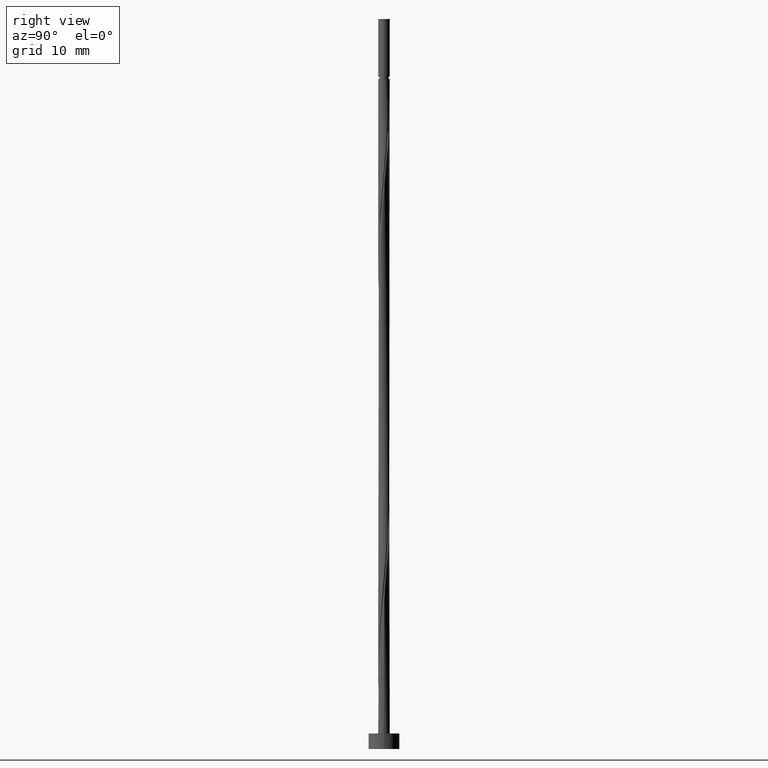
[diagram: clean part render]
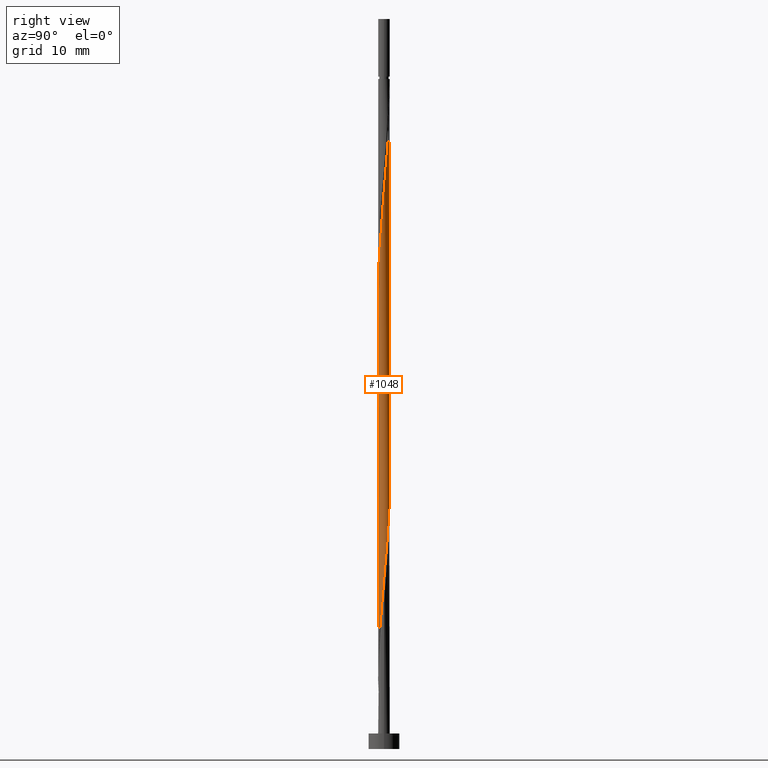
[diagram: same view with one face highlighted and labeled with its STEP entity id]
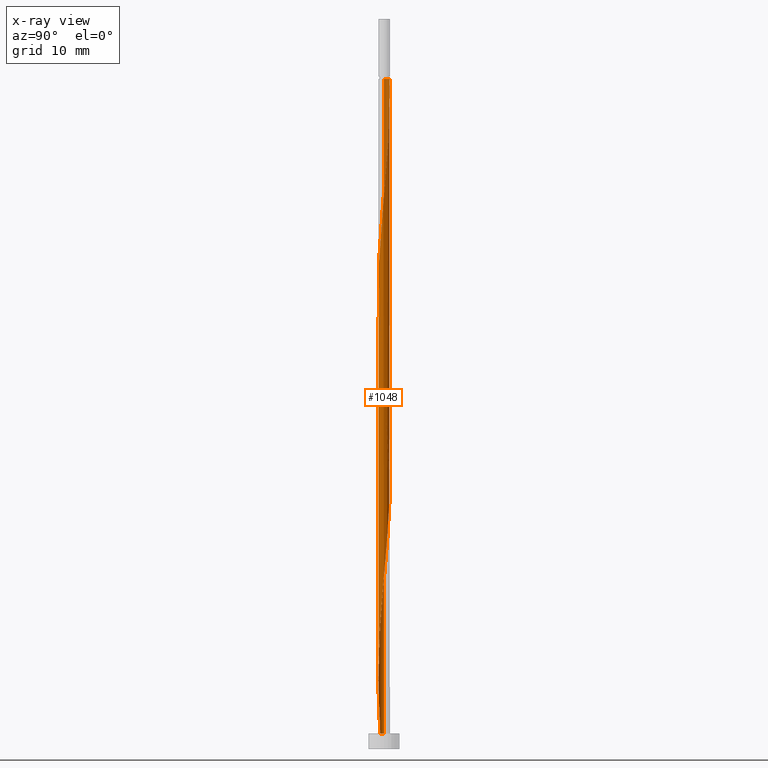
[diagram: x-ray of the same camera — body ghosted, the highlighted face saturated]
A machine part, right view. The second image highlights one B-rep face of the part: STEP entity #1048.
The next image is the same camera in x-ray: the body ghosted, the highlighted face saturated — about 0% of this face is hidden behind the body in this view.
In plain terms, the highlighted cylindrical surface (bore or boss wall) has radius 0.75 mm, axis along (-0, -0, -1).
Its self-contained STEP definition (entity closure, byte-faithful):
#8 =( BOUNDED_CURVE ( )  B_SPLINE_CURVE ( 2, ( #1279, #1074, #1932, #1255, #1717, #899, #260, #234, #575, #1553, #57, #737, #81, #1584, #1565, #762, #1403, #1233, #584, #1909, #1243, #1895, #419, #1099, #1085, #246, #924, #144, #824, #1290, #1608 ),
 .UNSPECIFIED., .F., .T. ) 
 B_SPLINE_CURVE_WITH_KNOTS ( ( 3, 2, 2, 2, 2, 2, 2, 2, 2, 2, 2, 2, 2, 2, 2, 3 ),
 ( 0.4295303401299219170, 0.4375000000000000000, 0.4464285714285714524, 0.4553571428571428492, 0.4642857142857143016, 0.4732142857142856984, 0.4821428571428571508, 0.4910714285714285476, 0.5000000000000000000, 0.5089285714285713969, 0.5178571428571429047, 0.5267857142857143016, 0.5357142857142856984, 0.5446428571428570953, 0.5535714285714286031, 0.5545303401299220836 ),
 .UNSPECIFIED. ) 
 CURVE ( )  GEOMETRIC_REPRESENTATION_ITEM ( )  RATIONAL_B_SPLINE_CURVE ( ( 0.9079949616361788767, 0.9039886423360418144, 0.9090909090909087276, 0.9033747362665836000, 0.9090909090909087276, 0.9033747362665836000, 0.9090909090909087276, 0.9033747362665836000, 0.9090909090909087276, 0.9033747362665836000, 0.9090909090909087276, 0.9033747362665836000, 0.9090909090909087276, 0.9033747362665836000, 0.9090909090909087276, 0.9033747362665836000, 0.9090909090909087276, 0.9033747362665836000, 0.9090909090909087276, 0.9033747362665836000, 0.9090909090909087276, 0.9033747362665836000, 0.9090909090909087276, 0.9033747362665836000, 0.9090909090909087276, 0.9033747362665836000, 0.9090909090909087276, 0.9033747362665836000, 0.9090909090909087276, 0.9084770030214505132, 0.9079949616361788767 ) ) 
 REPRESENTATION_ITEM ( '' )  );
#36 = CARTESIAN_POINT ( 'NONE',  ( -0.7500000000000001110, 0.000000000000000000, 94.00000000000000000 ) ) ;
#56 = VERTEX_POINT ( 'NONE', #1492 ) ;
#57 = CARTESIAN_POINT ( 'NONE',  ( -0.3415781289176498814, 0.6677008176160332820, 39.39293618694316734 ) ) ;
#81 = CARTESIAN_POINT ( 'NONE',  ( -0.1844366425333437420, 0.7269684483463018099, 37.51793618694316734 ) ) ;
#103 = CARTESIAN_POINT ( 'NONE',  ( -0.7500000000000001110, 0.000000000000000000, 2.000000000000000000 ) ) ;
#114 = CARTESIAN_POINT ( 'NONE',  ( -0.7350000000000012079, -0.1492481155659928227, 46.89293618694318155 ) ) ;
#123 = CARTESIAN_POINT ( 'NONE',  ( -0.4815914616119726377, -0.5749518798146898702, 52.51793618694316734 ) ) ;
#135 = CARTESIAN_POINT ( 'NONE',  ( 0.2320627263925745531, -0.7181837760446291297, 60.95543618694316734 ) ) ;
#144 = CARTESIAN_POINT ( 'NONE',  ( 0.7477494670858394477, 0.1025269702435437497, 23.45543618694317445 ) ) ;
#147 = CARTESIAN_POINT ( 'NONE',  ( -0.06643350473941125878, -0.7518162239553732862, 8.455436186943179777 ) ) ;
#153 = CARTESIAN_POINT ( 'NONE',  ( -0.7500000000000013323, -5.046777171966181625E-16, 45.21841910903714989 ) ) ;
#157 = CARTESIAN_POINT ( 'NONE',  ( 0.5463729802117891499, -0.5206895540040777925, 15.95543618694316912 ) ) ;
#177 = LINE ( 'NONE', #1061, #1468 ) ;
#186 = EDGE_CURVE ( 'NONE', #1697, #689, #2086, .T. ) ;
#187 = DIRECTION ( 'NONE',  ( -0.000000000000000000, -0.000000000000000000, -1.000000000000000000 ) ) ;
#201 = DIRECTION ( 'NONE',  ( -0.000000000000000000, -0.000000000000000000, -1.000000000000000000 ) ) ;
#234 = CARTESIAN_POINT ( 'NONE',  ( -0.5463729802117892609, 0.5206895540040777925, 42.20543618694317445 ) ) ;
#246 = CARTESIAN_POINT ( 'NONE',  ( 0.7061874296067640611, 0.2663463148231435818, 25.33043618694317090 ) ) ;
#260 = CARTESIAN_POINT ( 'NONE',  ( -0.5974557874702568494, 0.4533724539694678479, 43.14293618694316734 ) ) ;
#266 = ORIENTED_EDGE ( 'NONE', *, *, #810, .T. ) ;
#285 = CARTESIAN_POINT ( 'NONE',  ( 0.6833611853866768948, 0.3090590401637162699, 75.01793618694316024 ) ) ;
#295 = CARTESIAN_POINT ( 'NONE',  ( 0.7477494670858391146, -0.1025269702435439440, 70.33043618694317445 ) ) ;
#307 = CARTESIAN_POINT ( 'NONE',  ( -0.1025269702435439162, -0.7477494670858391146, 57.20543618694316734 ) ) ;
#317 = EDGE_CURVE ( 'NONE', #742, #689, #1224, .T. ) ;
#319 = CARTESIAN_POINT ( 'NONE',  ( 0.7269684483463013658, -0.1844366425333437975, 69.39293618694314603 ) ) ;
#331 = CARTESIAN_POINT ( 'NONE',  ( -0.1492481155660139724, 0.7350000000002122613, 86.26793618694317445 ) ) ;
#346 = CARTESIAN_POINT ( 'NONE',  ( 0.2663463148231436373, -0.7061874296067640611, 12.20543618694316912 ) ) ;
#372 = ORIENTED_EDGE ( 'NONE', *, *, #597, .F. ) ;
#387 = VECTOR ( 'NONE', #187, 1000.000000000000000 ) ;
#419 = CARTESIAN_POINT ( 'NONE',  ( 0.5749518798146904253, 0.4815914616119725822, 28.14293618694317800 ) ) ;
#465 = CARTESIAN_POINT ( 'NONE',  ( -0.7500000000000007772, -0.07537783614444165670, 46.05669018800074355 ) ) ;
#474 = CARTESIAN_POINT ( 'NONE',  ( 0.3090590401637162699, -0.6833611853866767838, 61.89293618694318155 ) ) ;
#478 = CARTESIAN_POINT ( 'NONE',  ( 0.01804673275206628361, -0.7497828455206064779, 9.392936186943172672 ) ) ;
#483 = CARTESIAN_POINT ( 'NONE',  ( 0.4533724539694676259, -0.5974557874702567384, 63.76793618694320287 ) ) ;
#486 = CARTESIAN_POINT ( 'NONE',  ( 0.7500000000000013323, 3.059783571912945138E-16, 22.31745326484922742 ) ) ;
#493 = CARTESIAN_POINT ( 'NONE',  ( 0.1844366425333438531, 0.7269684483463013658, 82.51793618694317445 ) ) ;
#512 = DIRECTION ( 'NONE',  ( 1.000000000000000000, 0.000000000000000000, 0.000000000000000000 ) ) ;
#513 = LINE ( 'NONE', #1703, #387 ) ;
#563 = ORIENTED_EDGE ( 'NONE', *, *, #953, .F. ) ;
#566 = CIRCLE ( 'NONE', #1738, 0.7500000000000015543 ) ;
#575 = CARTESIAN_POINT ( 'NONE',  ( -0.4815914616119726932, 0.5749518798146903142, 41.26793618694317445 ) ) ;
#584 = CARTESIAN_POINT ( 'NONE',  ( 0.3090590401637165474, 0.6833611853866768948, 31.89293618694317445 ) ) ;
#597 = EDGE_CURVE ( 'NONE', #1419, #1098, #2039, .T. ) ;
#625 = ORIENTED_EDGE ( 'NONE', *, *, #186, .T. ) ;
#633 = CARTESIAN_POINT ( 'NONE',  ( -0.06643350473941206369, 0.7518162239553730641, 85.33043618694318866 ) ) ;
#636 = CARTESIAN_POINT ( 'NONE',  ( -0.1492481155659930447, -0.7350000000000013189, 7.517936186943170895 ) ) ;
#644 = DIRECTION ( 'NONE',  ( -1.000000000000000000, 0.000000000000000000, 0.000000000000000000 ) ) ;
#647 = CARTESIAN_POINT ( 'NONE',  ( 0.4168099430121562921, -0.6292142056253025029, 14.08043618694317090 ) ) ;
#653 = CARTESIAN_POINT ( 'NONE',  ( 0.5974557874702567384, 0.4533724539694676259, 76.89293618694318866 ) ) ;
#657 = CARTESIAN_POINT ( 'NONE',  ( 0.5974557874702567384, -0.4533724539694679034, 16.89293618694318511 ) ) ;
#662 = CARTESIAN_POINT ( 'NONE',  ( 0.7181837760446291297, 0.2320627263925744699, 74.08043618694314603 ) ) ;
#672 = DIRECTION ( 'NONE',  ( 0.000000000000000000, 0.000000000000000000, 1.000000000000000000 ) ) ;
#676 = CARTESIAN_POINT ( 'NONE',  ( 0.3415781289176498814, -0.6677008176160333930, 13.14293618694317622 ) ) ;
#689 = VERTEX_POINT ( 'NONE', #726 ) ;
#710 = EDGE_LOOP ( 'NONE', ( #372, #1648, #563, #1103, #625, #1402, #891, #266, #1442 ) ) ;
#726 = CARTESIAN_POINT ( 'NONE',  ( -0.5687120014816356983, -0.4889444338273560287, 2.000000000000081268 ) ) ;
#730 = VERTEX_POINT ( 'NONE', #2031 ) ;
#737 = CARTESIAN_POINT ( 'NONE',  ( -0.2663463148231436928, 0.7061874296067640611, 38.45543618694318155 ) ) ;
#742 = VERTEX_POINT ( 'NONE', #1222 ) ;
#762 = CARTESIAN_POINT ( 'NONE',  ( 0.06643350473941116163, 0.7518162239553732862, 34.70543618694317445 ) ) ;
#766 = VERTEX_POINT ( 'NONE', #1043 ) ;
#796 = CARTESIAN_POINT ( 'NONE',  ( -0.3415781289176497704, -0.6677008176160329489, 54.39293618694316734 ) ) ;
#800 = CARTESIAN_POINT ( 'NONE',  ( 0.7181837760446293517, -0.2320627263925748585, 19.70543618694318155 ) ) ;
#805 = CYLINDRICAL_SURFACE ( 'NONE', #1662, 0.7500000000000001110 ) ;
#808 = CARTESIAN_POINT ( 'NONE',  ( -0.4533724539694678479, -0.5974557874702567384, 3.767936186943182886 ) ) ;
#810 = EDGE_CURVE ( 'NONE', #766, #742, #177, .T. ) ;
#815 = CARTESIAN_POINT ( 'NONE',  ( 0.7061874296067636170, -0.2663463148231435818, 68.45543618694316024 ) ) ;
#824 = CARTESIAN_POINT ( 'NONE',  ( 0.7497828455206064779, 0.01804673275206625932, 22.51793618694317445 ) ) ;
#833 = EDGE_CURVE ( 'NONE', #1419, #730, #566, .T. ) ;
#834 = CARTESIAN_POINT ( 'NONE',  ( 0.000000000000000000, 0.000000000000000000, 2.000000000000000000 ) ) ;
#835 = CARTESIAN_POINT ( 'NONE',  ( 0.2663463148231436373, 0.7061874296067633949, 81.58043618694314603 ) ) ;
#891 = ORIENTED_EDGE ( 'NONE', *, *, #810, .F. ) ;
#899 = CARTESIAN_POINT ( 'NONE',  ( -0.6485385947287247710, 0.3860553539348582919, 44.08043618694317445 ) ) ;
#924 = CARTESIAN_POINT ( 'NONE',  ( 0.7269684483463018099, 0.1844366425333435755, 24.39293618694317090 ) ) ;
#936 = EDGE_CURVE ( 'NONE', #1098, #742, #8, .T. ) ;
#953 = EDGE_CURVE ( 'NONE', #56, #730, #1256, .T. ) ;
#959 = FACE_OUTER_BOUND ( 'NONE', #710, .T. ) ;
#968 = CARTESIAN_POINT ( 'NONE',  ( 0.7518162239553730641, 0.06643350473941102285, 72.20543618694314603 ) ) ;
#978 = CARTESIAN_POINT ( 'NONE',  ( -0.1844366425333437420, -0.7269684483463013658, 56.26793618694317445 ) ) ;
#981 = CARTESIAN_POINT ( 'NONE',  ( 0.1025269702435437913, -0.7477494670858394477, 10.33043618694318333 ) ) ;
#984 = AXIS2_PLACEMENT_3D ( 'NONE', #834, #672, #512 ) ;
#990 = CARTESIAN_POINT ( 'NONE',  ( -0.7181837760446291297, -0.2320627263925746087, 47.83043618694316024 ) ) ;
#999 = CARTESIAN_POINT ( 'NONE',  ( 0.4815914616119726377, 0.5749518798146897591, 78.76793618694317445 ) ) ;
#1043 = CARTESIAN_POINT ( 'NONE',  ( 0.7500000000000001110, 9.184850993605150903E-17, 86.26793618694317445 ) ) ;
#1048 = ADVANCED_FACE ( 'NONE', ( #959 ), #805, .T. ) ;
#1061 = CARTESIAN_POINT ( 'NONE',  ( 0.7500000000000001110, 9.184850993605150903E-17, 94.00000000000000000 ) ) ;
#1074 = CARTESIAN_POINT ( 'NONE',  ( -0.7500000000000017764, 0.07537783614443960278, 47.72918218588566219 ) ) ;
#1085 = CARTESIAN_POINT ( 'NONE',  ( 0.6677008176160333930, 0.3415781289176498814, 26.26793618694317090 ) ) ;
#1098 = VERTEX_POINT ( 'NONE', #1540 ) ;
#1099 = CARTESIAN_POINT ( 'NONE',  ( 0.6292142056253023918, 0.4168099430121561810, 27.20543618694317445 ) ) ;
#1103 = ORIENTED_EDGE ( 'NONE', *, *, #1105, .T. ) ;
#1105 = EDGE_CURVE ( 'NONE', #56, #1697, #513, .T. ) ;
#1133 = CARTESIAN_POINT ( 'NONE',  ( 0.01804673275206652647, 0.7497828455206061449, 84.39293618694313182 ) ) ;
#1136 = CARTESIAN_POINT ( 'NONE',  ( -0.5687120014816358093, -0.4889444338273560287, 2.000000000000081268 ) ) ;
#1141 = CARTESIAN_POINT ( 'NONE',  ( -0.5974557874702567384, -0.4533724539694677369, 50.64293618694317445 ) ) ;
#1144 = CARTESIAN_POINT ( 'NONE',  ( -0.3090590401637165474, -0.6833611853866771169, 5.642936186943170895 ) ) ;
#1158 = CARTESIAN_POINT ( 'NONE',  ( 0.1025269702435439995, 0.7477494670858391146, 83.45543618694314603 ) ) ;
#1173 = CARTESIAN_POINT ( 'NONE',  ( 0.7500000000000014433, -0.07537783614444079627, 21.47918218588563022 ) ) ;
#1212 = CARTESIAN_POINT ( 'NONE',  ( 0.000000000000000000, 0.000000000000000000, 86.26793618694317445 ) ) ;
#1222 = CARTESIAN_POINT ( 'NONE',  ( 0.7500000000000013323, 3.059783571912945138E-16, 22.31745326484922742 ) ) ;
#1224 =( BOUNDED_CURVE ( )  B_SPLINE_CURVE ( 2, ( #486, #1173, #1495, #800, #1641, #1957, #657, #157, #2142, #647, #676, #346, #2112, #981, #478, #147, #636, #1484, #1144, #2134, #808, #1622, #1136 ),
 .UNSPECIFIED., .F., .T. ) 
 B_SPLINE_CURVE_WITH_KNOTS ( ( 3, 2, 2, 2, 2, 2, 2, 2, 2, 2, 2, 3 ),
 ( 0.5545303401299220836, 0.5625000000000000000, 0.5714285714285713969, 0.5803571428571429047, 0.5892857142857143016, 0.5982142857142856984, 0.6071428571428570953, 0.6160714285714286031, 0.6250000000000000000, 0.6339285714285713969, 0.6428571428571429047, 0.6512731958815829447 ),
 .UNSPECIFIED. ) 
 CURVE ( )  GEOMETRIC_REPRESENTATION_ITEM ( )  RATIONAL_B_SPLINE_CURVE ( ( 0.9079949616361788767, 0.9039886423360419254, 0.9090909090909087276, 0.9033747362665836000, 0.9090909090909087276, 0.9033747362665836000, 0.9090909090909087276, 0.9033747362665836000, 0.9090909090909087276, 0.9033747362665836000, 0.9090909090909087276, 0.9033747362665836000, 0.9090909090909087276, 0.9033747362665836000, 0.9090909090909087276, 0.9033747362665836000, 0.9090909090909087276, 0.9033747362665836000, 0.9090909090909087276, 0.9033747362665836000, 0.9090909090909087276, 0.9037028563692337535, 0.9084723384260761092 ) ) 
 REPRESENTATION_ITEM ( '' )  );
#1233 = CARTESIAN_POINT ( 'NONE',  ( 0.2320627263925748862, 0.7181837760446293517, 32.83043618694317445 ) ) ;
#1243 = CARTESIAN_POINT ( 'NONE',  ( 0.4533724539694679034, 0.5974557874702567384, 30.01793618694317800 ) ) ;
#1255 = CARTESIAN_POINT ( 'NONE',  ( -0.7181837760446294627, 0.2320627263925747752, 45.95543618694317445 ) ) ;
#1256 =( BOUNDED_CURVE ( )  B_SPLINE_CURVE ( 2, ( #153, #465, #114, #990, #1619, #1638, #1141, #2109, #123, #1773, #796, #1481, #978, #307, #1627, #1954, #1801, #135, #474, #1318, #483, #1450, #1973, #2139, #1812, #815, #319, #295, #1472, #968, #1943, #662, #285, #2149, #653, #1310, #999, #1963, #1647, #835, #493, #1158, #1133, #633, #331 ),
 .UNSPECIFIED., .F., .T. ) 
 B_SPLINE_CURVE_WITH_KNOTS ( ( 3, 2, 2, 2, 2, 2, 2, 2, 2, 2, 2, 2, 2, 2, 2, 2, 2, 2, 2, 2, 2, 2, 3 ),
 ( 0.5545303401299221946, 0.5625000000000000000, 0.5714285714285713969, 0.5803571428571427937, 0.5892857142857143016, 0.5982142857142856984, 0.6071428571428572063, 0.6160714285714286031, 0.6250000000000000000, 0.6339285714285713969, 0.6428571428571427937, 0.6517857142857144126, 0.6607142857142858094, 0.6696428571428573173, 0.6785714285714287142, 0.6875000000000001110, 0.6964285714285715079, 0.7053571428571429047, 0.7142857142857144126, 0.7232142857142858094, 0.7321428571428573173, 0.7410714285714287142, 0.7500000000000001110 ),
 .UNSPECIFIED. ) 
 CURVE ( )  GEOMETRIC_REPRESENTATION_ITEM ( )  RATIONAL_B_SPLINE_CURVE ( ( 0.9079949616361765452, 0.9039886423360401491, 0.9090909090909066181, 0.9033747362665818237, 0.9090909090909066181, 0.9033747362665818237, 0.9090909090909066181, 0.9033747362665818237, 0.9090909090909066181, 0.9033747362665818237, 0.9090909090909066181, 0.9033747362665818237, 0.9090909090909066181, 0.9033747362665818237, 0.9090909090909066181, 0.9033747362665818237, 0.9090909090909066181, 0.9033747362665818237, 0.9090909090909066181, 0.9033747362665818237, 0.9090909090909066181, 0.9033747362665818237, 0.9090909090909066181, 0.9033747362665818237, 0.9090909090909066181, 0.9033747362665818237, 0.9090909090909066181, 0.9033747362665818237, 0.9090909090909066181, 0.9033747362665818237, 0.9090909090909066181, 0.9033747362665818237, 0.9090909090909066181, 0.9033747362665818237, 0.9090909090909066181, 0.9033747362665818237, 0.9090909090909066181, 0.9033747362665818237, 0.9090909090909066181, 0.9033747362665818237, 0.9090909090909066181, 0.9033747362665818237, 0.9090909090909066181, 0.9033747362665817127, 0.9090909090909067292 ) ) 
 REPRESENTATION_ITEM ( '' )  );
#1279 = CARTESIAN_POINT ( 'NONE',  ( -0.7500000000000015543, -5.028119955064261352E-16, 48.56745326484923453 ) ) ;
#1290 = CARTESIAN_POINT ( 'NONE',  ( 0.7500000000000013323, 0.009024672874793169403, 22.41781595307431374 ) ) ;
#1310 = CARTESIAN_POINT ( 'NONE',  ( 0.5463729802117890388, 0.5206895540040771264, 77.83043618694316024 ) ) ;
#1318 = CARTESIAN_POINT ( 'NONE',  ( 0.3860553539348579033, -0.6485385947287242159, 62.83043618694316024 ) ) ;
#1364 = DIRECTION ( 'NONE',  ( -0.000000000000000000, -0.000000000000000000, -1.000000000000000000 ) ) ;
#1402 = ORIENTED_EDGE ( 'NONE', *, *, #317, .F. ) ;
#1403 = CARTESIAN_POINT ( 'NONE',  ( 0.1492481155659931003, 0.7350000000000013189, 33.76793618694317445 ) ) ;
#1419 = VERTEX_POINT ( 'NONE', #1501 ) ;
#1442 = ORIENTED_EDGE ( 'NONE', *, *, #936, .F. ) ;
#1450 = CARTESIAN_POINT ( 'NONE',  ( 0.5206895540040771264, -0.5463729802117890388, 64.70543618694317445 ) ) ;
#1461 = CARTESIAN_POINT ( 'NONE',  ( 0.000000000000000000, 0.000000000000000000, 94.00000000000000000 ) ) ;
#1468 = VECTOR ( 'NONE', #1852, 1000.000000000000000 ) ;
#1472 = CARTESIAN_POINT ( 'NONE',  ( 0.7497828455206061449, -0.01804673275206647443, 71.26793618694318866 ) ) ;
#1481 = CARTESIAN_POINT ( 'NONE',  ( -0.2663463148231435818, -0.7061874296067636170, 55.33043618694316734 ) ) ;
#1484 = CARTESIAN_POINT ( 'NONE',  ( -0.2320627263925748029, -0.7181837760446293517, 6.580436186943178889 ) ) ;
#1492 = CARTESIAN_POINT ( 'NONE',  ( -0.7500000000000013323, -5.046777171966181625E-16, 45.21841910903714989 ) ) ;
#1495 = CARTESIAN_POINT ( 'NONE',  ( 0.7350000000000013189, -0.1492481155659930447, 20.64293618694316379 ) ) ;
#1501 = CARTESIAN_POINT ( 'NONE',  ( -0.7500000000000014433, 0.000000000000000000, 86.26793618694317445 ) ) ;
#1515 = DIRECTION ( 'NONE',  ( -1.000000000000000000, 0.000000000000000000, 0.000000000000000000 ) ) ;
#1527 = VECTOR ( 'NONE', #1364, 1000.000000000000000 ) ;
#1540 = CARTESIAN_POINT ( 'NONE',  ( -0.7500000000000015543, -5.028119955064261352E-16, 48.56745326484923453 ) ) ;
#1553 = CARTESIAN_POINT ( 'NONE',  ( -0.4168099430121563476, 0.6292142056253025029, 40.33043618694316734 ) ) ;
#1565 = CARTESIAN_POINT ( 'NONE',  ( -0.01804673275206635993, 0.7497828455206064779, 35.64293618694318155 ) ) ;
#1584 = CARTESIAN_POINT ( 'NONE',  ( -0.1025269702435439162, 0.7477494670858394477, 36.58043618694317445 ) ) ;
#1608 = CARTESIAN_POINT ( 'NONE',  ( 0.7500000000000013323, 3.059783571912945138E-16, 22.31745326484922742 ) ) ;
#1619 = CARTESIAN_POINT ( 'NONE',  ( -0.6833611853866767838, -0.3090590401637163254, 48.76793618694317445 ) ) ;
#1622 = CARTESIAN_POINT ( 'NONE',  ( -0.5168023749455867843, -0.5493227213402982478, 2.884571471521117036 ) ) ;
#1627 = CARTESIAN_POINT ( 'NONE',  ( -0.01804673275206639463, -0.7497828455206061449, 58.14293618694317445 ) ) ;
#1638 = CARTESIAN_POINT ( 'NONE',  ( -0.6485385947287242159, -0.3860553539348579033, 49.70543618694318155 ) ) ;
#1641 = CARTESIAN_POINT ( 'NONE',  ( 0.6833611853866771169, -0.3090590401637165474, 18.76793618694317090 ) ) ;
#1647 = CARTESIAN_POINT ( 'NONE',  ( 0.3415781289176498814, 0.6677008176160329489, 80.64293618694317445 ) ) ;
#1648 = ORIENTED_EDGE ( 'NONE', *, *, #833, .T. ) ;
#1662 = AXIS2_PLACEMENT_3D ( 'NONE', #1461, #2122, #644 ) ;
#1697 = VERTEX_POINT ( 'NONE', #103 ) ;
#1703 = CARTESIAN_POINT ( 'NONE',  ( -0.7500000000000001110, 0.000000000000000000, 94.00000000000000000 ) ) ;
#1717 = CARTESIAN_POINT ( 'NONE',  ( -0.6833611853866771169, 0.3090590401637164919, 45.01793618694317445 ) ) ;
#1738 = AXIS2_PLACEMENT_3D ( 'NONE', #1212, #201, #1515 ) ;
#1773 = CARTESIAN_POINT ( 'NONE',  ( -0.4168099430121560700, -0.6292142056253022808, 53.45543618694316734 ) ) ;
#1801 = CARTESIAN_POINT ( 'NONE',  ( 0.1492481155659928227, -0.7350000000000012079, 60.01793618694317445 ) ) ;
#1812 = CARTESIAN_POINT ( 'NONE',  ( 0.6677008176160329489, -0.3415781289176498814, 67.51793618694316024 ) ) ;
#1852 = DIRECTION ( 'NONE',  ( -0.000000000000000000, -0.000000000000000000, -1.000000000000000000 ) ) ;
#1895 = CARTESIAN_POINT ( 'NONE',  ( 0.5206895540040780146, 0.5463729802117889278, 29.08043618694318511 ) ) ;
#1909 = CARTESIAN_POINT ( 'NONE',  ( 0.3860553539348583474, 0.6485385947287247710, 30.95543618694317445 ) ) ;
#1932 = CARTESIAN_POINT ( 'NONE',  ( -0.7350000000000013189, 0.1492481155659929892, 46.89293618694317445 ) ) ;
#1943 = CARTESIAN_POINT ( 'NONE',  ( 0.7350000000000012079, 0.1492481155659927672, 73.14293618694318866 ) ) ;
#1954 = CARTESIAN_POINT ( 'NONE',  ( 0.06643350473941106449, -0.7518162239553730641, 59.08043618694315313 ) ) ;
#1957 = CARTESIAN_POINT ( 'NONE',  ( 0.6485385947287247710, -0.3860553539348583474, 17.83043618694317445 ) ) ;
#1963 = CARTESIAN_POINT ( 'NONE',  ( 0.4168099430121560700, 0.6292142056253021698, 79.70543618694314603 ) ) ;
#1973 = CARTESIAN_POINT ( 'NONE',  ( 0.5749518798146897591, -0.4815914616119726377, 65.64293618694317445 ) ) ;
#2031 = CARTESIAN_POINT ( 'NONE',  ( -0.1492481155660139724, 0.7350000000002122613, 86.26793618694317445 ) ) ;
#2039 = LINE ( 'NONE', #36, #1527 ) ;
#2086 = CIRCLE ( 'NONE', #984, 0.7500000000000001110 ) ;
#2109 = CARTESIAN_POINT ( 'NONE',  ( -0.5463729802117890388, -0.5206895540040771264, 51.58043618694316734 ) ) ;
#2112 = CARTESIAN_POINT ( 'NONE',  ( 0.1844366425333436588, -0.7269684483463018099, 11.26793618694317622 ) ) ;
#2122 = DIRECTION ( 'NONE',  ( -0.000000000000000000, -0.000000000000000000, -1.000000000000000000 ) ) ;
#2134 = CARTESIAN_POINT ( 'NONE',  ( -0.3860553539348583474, -0.6485385947287247710, 4.705436186943177113 ) ) ;
#2139 = CARTESIAN_POINT ( 'NONE',  ( 0.6292142056253022808, -0.4168099430121560700, 66.58043618694316024 ) ) ;
#2142 = CARTESIAN_POINT ( 'NONE',  ( 0.4815914616119725822, -0.5749518798146904253, 15.01793618694317622 ) ) ;
#2149 = CARTESIAN_POINT ( 'NONE',  ( 0.6485385947287242159, 0.3860553539348578478, 75.95543618694313182 ) ) ;